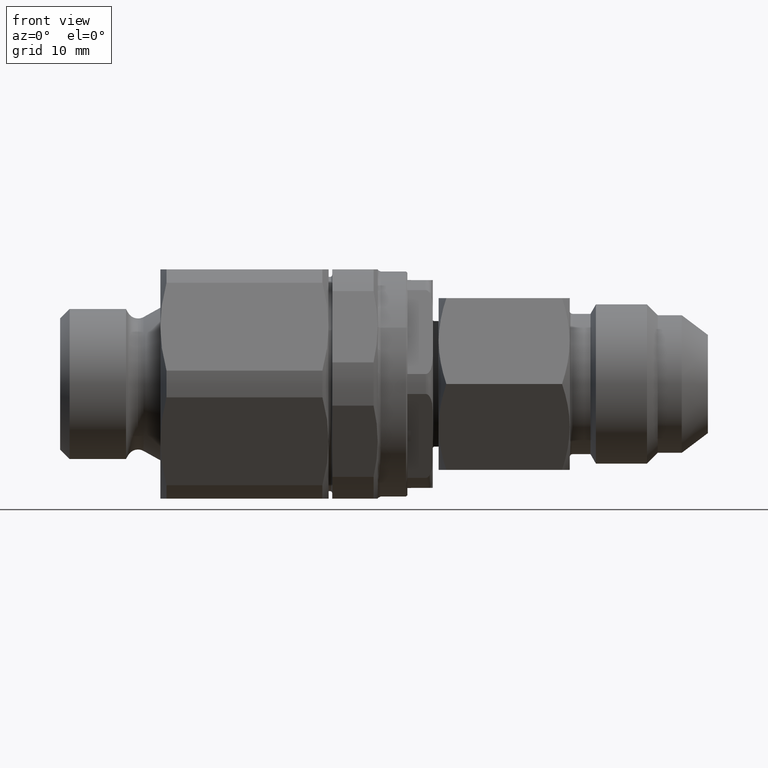
[diagram: clean part render]
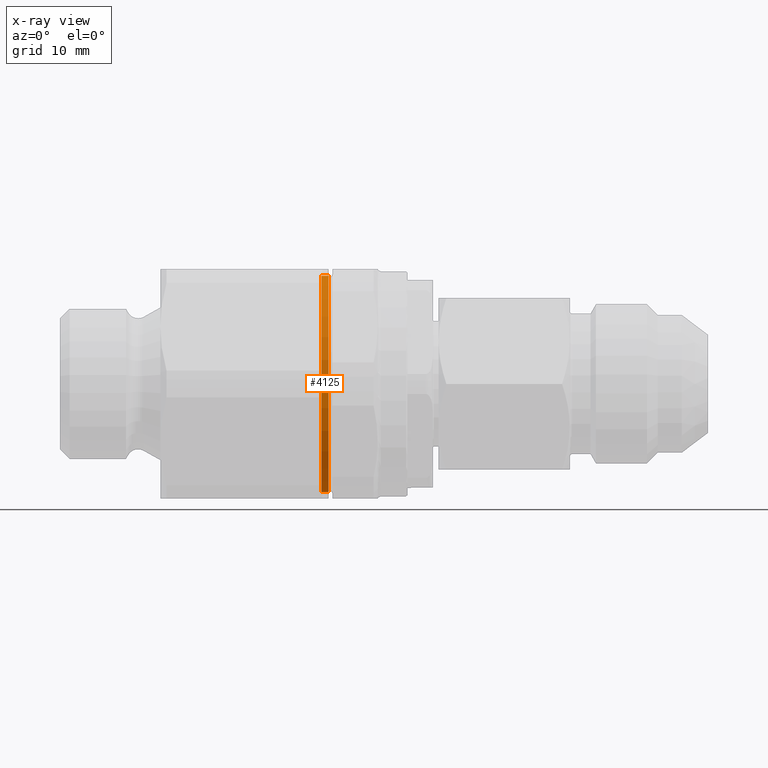
[diagram: x-ray — body ghosted, one internal face saturated and labeled with its STEP entity id]
A machine part, front view, then the same camera in x-ray: the body is ghosted and one INTERNAL B-rep face — a face not visible from any outside direction — is saturated and labeled: STEP entity #4125.
In plain terms, the highlighted cylindrical surface (partial cylindrical patch) has radius 15.1 mm, axis along (1, -0, -0).
Its self-contained STEP definition (entity closure, byte-faithful):
#141 = CARTESIAN_POINT ( 'NONE',  ( 36.50378895913112800, 0.0000000000000000000, -15.10000000000000000 ) ) ;
#507 = CARTESIAN_POINT ( 'NONE',  ( 36.50378895913112800, 1.849216666712503300E-015, 15.10000000000000000 ) ) ;
#1093 = ORIENTED_EDGE ( 'NONE', *, *, #1525, .T. ) ;
#1101 = ORIENTED_EDGE ( 'NONE', *, *, #1526, .F. ) ;
#1104 = ORIENTED_EDGE ( 'NONE', *, *, #1672, .T. ) ;
#1117 = ORIENTED_EDGE ( 'NONE', *, *, #1467, .F. ) ;
#1171 = VERTEX_POINT ( 'NONE', #5776 ) ;
#1204 = VERTEX_POINT ( 'NONE', #507 ) ;
#1309 = VERTEX_POINT ( 'NONE', #5797 ) ;
#1467 = EDGE_CURVE ( 'NONE', #1204, #4218, #3280, .T. ) ;
#1525 = EDGE_CURVE ( 'NONE', #1171, #1309, #3319, .T. ) ;
#1526 = EDGE_CURVE ( 'NONE', #4218, #1309, #3318, .T. ) ;
#1672 = EDGE_CURVE ( 'NONE', #1204, #1171, #2348, .T. ) ;
#1712 = CARTESIAN_POINT ( 'NONE',  ( 7.552600000000000000, 0.0000000000000000000, 0.0000000000000000000 ) ) ;
#1713 = DIRECTION ( 'NONE',  ( 1.000000000000000000, -0.0000000000000000000, -0.0000000000000000000 ) ) ;
#1714 = DIRECTION ( 'NONE',  ( 0.0000000000000000000, 0.0000000000000000000, -1.000000000000000000 ) ) ;
#2348 = LINE ( 'NONE', #4531, #2350 ) ;
#2350 = VECTOR ( 'NONE', #4532, 1000.000000000000000 ) ;
#2547 = FACE_OUTER_BOUND ( 'NONE', #5001, .T. ) ;
#2548 = CYLINDRICAL_SURFACE ( 'NONE', #2880, 15.10000000000000000 ) ;
#2698 = AXIS2_PLACEMENT_3D ( 'NONE', #3753, #3754, #3755 ) ;
#2723 = AXIS2_PLACEMENT_3D ( 'NONE', #5229, #5230, #5231 ) ;
#2880 = AXIS2_PLACEMENT_3D ( 'NONE', #1712, #1713, #1714 ) ;
#3280 = CIRCLE ( 'NONE', #2698, 15.10000000000000000 ) ;
#3318 = LINE ( 'NONE', #5232, #3320 ) ;
#3319 = CIRCLE ( 'NONE', #2723, 15.10000000000000100 ) ;
#3320 = VECTOR ( 'NONE', #5233, 1000.000000000000000 ) ;
#3753 = CARTESIAN_POINT ( 'NONE',  ( 36.50378895913112800, 0.0000000000000000000, 0.0000000000000000000 ) ) ;
#3754 = DIRECTION ( 'NONE',  ( 1.000000000000000000, -4.544012971304954700E-017, 0.0000000000000000000 ) ) ;
#3755 = DIRECTION ( 'NONE',  ( 0.0000000000000000000, -1.000000000000000000, 0.0000000000000000000 ) ) ;
#4125 = ADVANCED_FACE ( 'NONE', ( #2547 ), #2548, .F. ) ;
#4218 = VERTEX_POINT ( 'NONE', #141 ) ;
#4531 = CARTESIAN_POINT ( 'NONE',  ( 7.552600000000000000, 1.849216666712503300E-015, 15.10000000000000000 ) ) ;
#4532 = DIRECTION ( 'NONE',  ( 1.000000000000000000, -0.0000000000000000000, -0.0000000000000000000 ) ) ;
#5001 = EDGE_LOOP ( 'NONE', ( #1117, #1104, #1093, #1101 ) ) ;
#5229 = CARTESIAN_POINT ( 'NONE',  ( 37.50000000000000000, 0.0000000000000000000, 0.0000000000000000000 ) ) ;
#5230 = DIRECTION ( 'NONE',  ( 1.000000000000000000, -0.0000000000000000000, -0.0000000000000000000 ) ) ;
#5231 = DIRECTION ( 'NONE',  ( 0.0000000000000000000, 0.0000000000000000000, -1.000000000000000000 ) ) ;
#5232 = CARTESIAN_POINT ( 'NONE',  ( 7.552600000000000000, 0.0000000000000000000, -15.10000000000000000 ) ) ;
#5233 = DIRECTION ( 'NONE',  ( 1.000000000000000000, -0.0000000000000000000, -0.0000000000000000000 ) ) ;
#5776 = CARTESIAN_POINT ( 'NONE',  ( 37.50000000000000000, 1.849216666712503700E-015, 15.10000000000000100 ) ) ;
#5797 = CARTESIAN_POINT ( 'NONE',  ( 37.50000000000000000, 0.0000000000000000000, -15.10000000000000100 ) ) ;